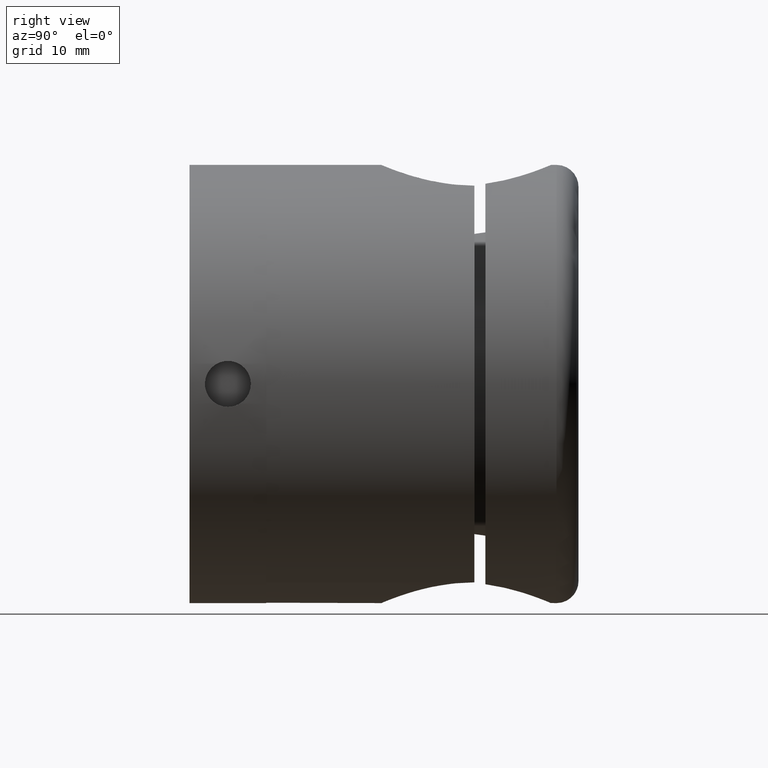
[diagram: clean part render]
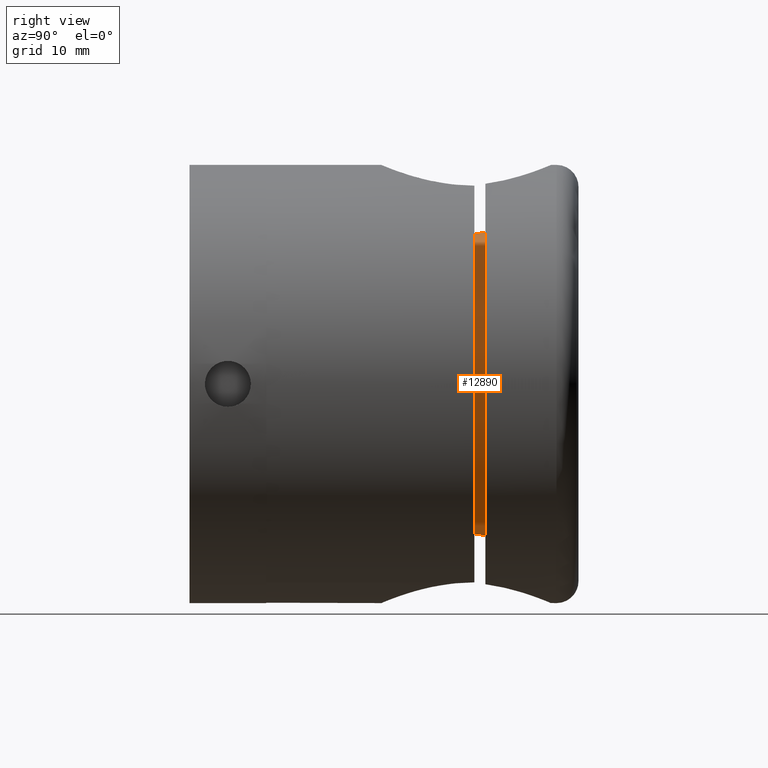
[diagram: same view with one face highlighted and labeled with its STEP entity id]
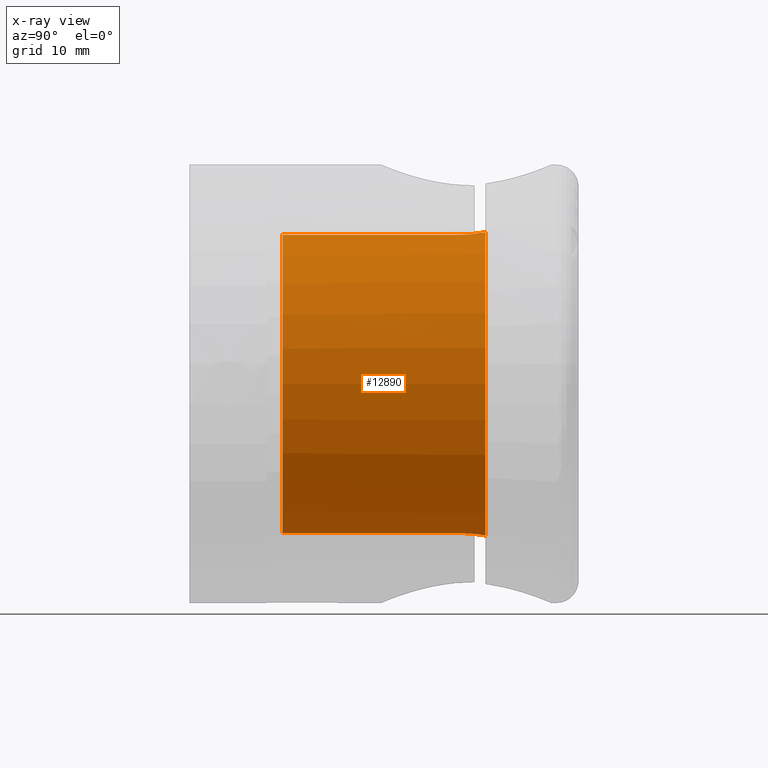
[diagram: x-ray of the same camera — body ghosted, the highlighted face saturated]
A machine part, right view. The second image highlights one B-rep face of the part: STEP entity #12890.
The next image is the same camera in x-ray: the body ghosted, the highlighted face saturated — about 0% of this face is hidden behind the body in this view.
In plain terms, the highlighted cylindrical surface (partial cylindrical patch) has radius 16.05 mm, axis along (-0, 1, 0).
Its self-contained STEP definition (entity closure, byte-faithful):
#6 = CARTESIAN_POINT ( 'NONE',  ( 8.499999999999996400, 12.50000000000000000, -13.61442249968760400 ) ) ;
#381 = CARTESIAN_POINT ( 'NONE',  ( 8.499999999999996400, 12.50000000000000000, 13.61442249968760100 ) ) ;
#925 = CARTESIAN_POINT ( 'NONE',  ( 0.0000000000000000000, 10.00000000000000000, 0.0000000000000000000 ) ) ;
#1522 = EDGE_CURVE ( 'NONE', #17103, #13089, #1909, .T. ) ;
#1540 = CARTESIAN_POINT ( 'NONE',  ( 8.341863703757253400, 10.81370462376175800, 13.71208679511241800 ) ) ;
#1602 = CARTESIAN_POINT ( 'NONE',  ( 8.468387267113774500, 11.65341908705048400, 13.63431081584047000 ) ) ;
#1909 = CIRCLE ( 'NONE', #16121, 16.05000000000000100 ) ;
#3154 = CARTESIAN_POINT ( 'NONE',  ( 8.372652389521352500, 10.80789982445540300, -13.69614149206021900 ) ) ;
#3203 = VECTOR ( 'NONE', #14719, 1000.000000000000000 ) ;
#3213 = CARTESIAN_POINT ( 'NONE',  ( 8.124038404635960800, 10.00000000000000000, -13.84205548320046700 ) ) ;
#3607 = B_SPLINE_CURVE_WITH_KNOTS ( 'NONE', 3,
 ( #381, #13620, #1602, #1540, #9550, #13775 ),
 .UNSPECIFIED., .F., .F.,
 ( 4, 2, 4 ),
 ( 0.004200269153136079700, 0.005465302641848628900, 0.006730336130561178100 ),
 .UNSPECIFIED. ) ;
#3640 = LINE ( 'NONE', #5330, #3203 ) ;
#4242 = CARTESIAN_POINT ( 'NONE',  ( 0.0000000000000000000, 28.49999999999998900, 0.0000000000000000000 ) ) ;
#4393 = CARTESIAN_POINT ( 'NONE',  ( 8.499999999999996400, 12.50000000000000000, 13.61442249968760100 ) ) ;
#4490 = CARTESIAN_POINT ( 'NONE',  ( 8.499999999999998200, 28.49999999999998600, 13.61442249968760800 ) ) ;
#4592 = CARTESIAN_POINT ( 'NONE',  ( 8.500000000000001800, 11.64254570956218900, -13.61442249968767200 ) ) ;
#5184 = DIRECTION ( 'NONE',  ( 0.0000000000000000000, 0.0000000000000000000, 1.000000000000000000 ) ) ;
#5330 = CARTESIAN_POINT ( 'NONE',  ( 8.499999999999998200, 29.50000000000000000, -13.61442249968760400 ) ) ;
#5968 = DIRECTION ( 'NONE',  ( 0.0000000000000000000, 0.0000000000000000000, -1.000000000000000000 ) ) ;
#6041 = CARTESIAN_POINT ( 'NONE',  ( 8.124038404635960800, 10.00000000000000000, 13.84205548320046700 ) ) ;
#6197 = ORIENTED_EDGE ( 'NONE', *, *, #1522, .T. ) ;
#6341 = EDGE_CURVE ( 'NONE', #7023, #17103, #3607, .T. ) ;
#6388 = B_SPLINE_CURVE_WITH_KNOTS ( 'NONE', 3,
 ( #3213, #3154, #4592, #8447 ),
 .UNSPECIFIED., .F., .F.,
 ( 4, 4 ),
 ( 1.734723475976807100E-018, 0.002538390201087970700 ),
 .UNSPECIFIED. ) ;
#6534 = VERTEX_POINT ( 'NONE', #16890 ) ;
#6628 = VERTEX_POINT ( 'NONE', #4490 ) ;
#6765 = CARTESIAN_POINT ( 'NONE',  ( 8.124038404635960800, 10.00000000000000000, -13.84205548320046700 ) ) ;
#6813 = CYLINDRICAL_SURFACE ( 'NONE', #12567, 16.05000000000000100 ) ;
#6902 = EDGE_LOOP ( 'NONE', ( #17413, #13673, #9308, #6197, #8240, #14230 ) ) ;
#7023 = VERTEX_POINT ( 'NONE', #4393 ) ;
#7035 = FACE_OUTER_BOUND ( 'NONE', #6902, .T. ) ;
#7294 = AXIS2_PLACEMENT_3D ( 'NONE', #4242, #16336, #11017 ) ;
#7431 = DIRECTION ( 'NONE',  ( -0.0000000000000000000, -1.000000000000000000, -0.0000000000000000000 ) ) ;
#7991 = VECTOR ( 'NONE', #13725, 1000.000000000000000 ) ;
#8240 = ORIENTED_EDGE ( 'NONE', *, *, #15083, .T. ) ;
#8312 = EDGE_CURVE ( 'NONE', #13440, #6534, #3640, .T. ) ;
#8447 = CARTESIAN_POINT ( 'NONE',  ( 8.499999999999996400, 12.50000000000000000, -13.61442249968760400 ) ) ;
#8992 = DIRECTION ( 'NONE',  ( 0.0000000000000000000, 1.000000000000000000, 0.0000000000000000000 ) ) ;
#9308 = ORIENTED_EDGE ( 'NONE', *, *, #6341, .T. ) ;
#9531 = EDGE_CURVE ( 'NONE', #6628, #7023, #11592, .T. ) ;
#9550 = CARTESIAN_POINT ( 'NONE',  ( 8.247955891550145000, 10.40268416907871800, 13.76932709225314100 ) ) ;
#11017 = DIRECTION ( 'NONE',  ( 0.0000000000000000000, 0.0000000000000000000, 1.000000000000000000 ) ) ;
#11592 = LINE ( 'NONE', #12389, #7991 ) ;
#12389 = CARTESIAN_POINT ( 'NONE',  ( 8.499999999999998200, 29.50000000000000000, 13.61442249968760400 ) ) ;
#12567 = AXIS2_PLACEMENT_3D ( 'NONE', #15432, #7431, #5968 ) ;
#12890 = ADVANCED_FACE ( 'NONE', ( #7035 ), #6813, .T. ) ;
#13089 = VERTEX_POINT ( 'NONE', #6765 ) ;
#13440 = VERTEX_POINT ( 'NONE', #6 ) ;
#13620 = CARTESIAN_POINT ( 'NONE',  ( 8.500000000000000000, 12.07894218635278900, 13.61442249968759900 ) ) ;
#13673 = ORIENTED_EDGE ( 'NONE', *, *, #9531, .T. ) ;
#13725 = DIRECTION ( 'NONE',  ( -0.0000000000000000000, -1.000000000000000000, -0.0000000000000000000 ) ) ;
#13775 = CARTESIAN_POINT ( 'NONE',  ( 8.124038404635960800, 10.00000000000000000, 13.84205548320046700 ) ) ;
#14230 = ORIENTED_EDGE ( 'NONE', *, *, #8312, .T. ) ;
#14719 = DIRECTION ( 'NONE',  ( 0.0000000000000000000, 1.000000000000000000, 0.0000000000000000000 ) ) ;
#15083 = EDGE_CURVE ( 'NONE', #13089, #13440, #6388, .T. ) ;
#15432 = CARTESIAN_POINT ( 'NONE',  ( 0.0000000000000000000, 29.50000000000000000, 0.0000000000000000000 ) ) ;
#15623 = EDGE_CURVE ( 'NONE', #6534, #6628, #16002, .T. ) ;
#16002 = CIRCLE ( 'NONE', #7294, 16.05000000000000100 ) ;
#16121 = AXIS2_PLACEMENT_3D ( 'NONE', #925, #8992, #5184 ) ;
#16336 = DIRECTION ( 'NONE',  ( 0.0000000000000000000, -1.000000000000000000, 0.0000000000000000000 ) ) ;
#16890 = CARTESIAN_POINT ( 'NONE',  ( 8.499999999999998200, 28.49999999999997900, -13.61442249968762000 ) ) ;
#17103 = VERTEX_POINT ( 'NONE', #6041 ) ;
#17413 = ORIENTED_EDGE ( 'NONE', *, *, #15623, .T. ) ;